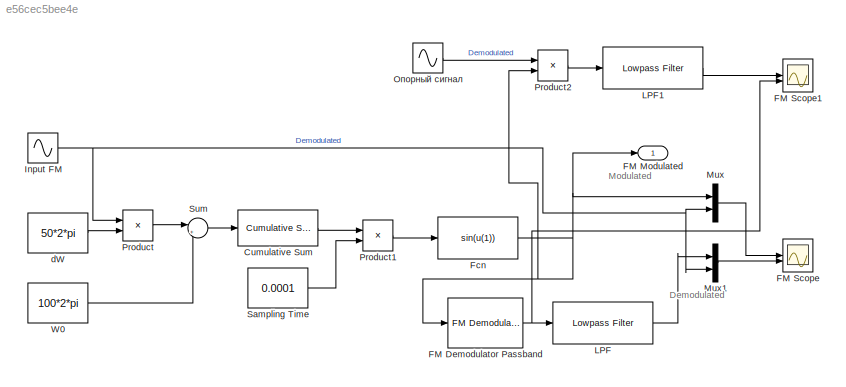
MODEL slx_e56cec5bee4e
KIND model
CONFIG AbsTol = auto
CONFIG EnableMultiTasking = off
CONFIG FixedStep = auto
CONFIG MaxStep = auto
CONFIG MinStep = auto
CONFIG RelTol = 1e-3
CONFIG SampleTimeConstraint = Unconstrained
CONFIG SolverName = VariableStepAuto
CONFIG StartTime = 0.0
CONFIG StopTime = 1
BLOCK [Reference] Cumulative Sum  REF=dspmathops/Cumulative
Sum
  SourceBlock = dspmathops/Cumulative\nSum
  SourceType = Cumulative Sum
  UserDataPersistent = on
BLOCK [Reference] FM Demodulator Passband  REF=commanapbnd3/FM
Demodulator
Passband
  SourceBlock = commanapbnd3/FM\nDemodulator\nPassband
  SourceType = FM Demodulator Passband
BLOCK [Outport] FM Modulated
  NameLocation = top
BLOCK [Scope] FM Scope
  ActiveDisplayString = 2
  ActiveDisplayYMaximum = 1.2499999999999212
  ActiveDisplayYMinimum = -1.2499999999998153
  Floating = off
  GraphicalSettings = {"Style":{"BackgroundColor":[1,1,1],"AxesColor":[1,1,1],"LabelsColor":[0.14901960784313725,0.14901960784313725,0.14901960784313725],"PreserveColors":false,"Visible":[true,true,true,true],"LineStyle":["-","-","-","-"],"LineWidth":[1.5,1.5,1.5,1.5],"BarWidth":[0.9,0.9,0.9,0.9],"LineColor":[[0.28627450980392155,0.8588235294117647,0.25098039215686274],[0.7529411764705882,0.3607843137254902,0.984313725...<+2512ch>
  LayoutDimensionsString = [2,1]
  MultipleDisplayCache = [{"MaxYLimMag":1.2499999999999212,"MaxYLimReal":1.2499999999999212,"MinYLimMag":0,"MinYLimReal":-1.2499999999998153,"PlotAsMagnitudePhase":false,"ShowGrid":true,"ShowLegend":true,"Title":"%<SignalLabel>","YLabel":""},{"MaxYLimMag":1.2499999999999212,"MaxYLimReal":1.2499999999999212,"MinYLimMag":0,"MinYLimReal":-1.2499999999998153,"PlotAsMagnitudePhase":false,"ShowGrid":true,"ShowLegend":true,"Titl...<+33ch>
  NumInputPorts = 2
  ScopeFrameLocation = window
  ShowLegend = on
  WasSavedAsWebScope = on
  WindowPosition = [0.000000,36.000000,1536.000000,793.000000,]
BLOCK [Scope] FM Scope1
  ActiveDisplayString = 2
  ActiveDisplayYMaximum = 3.1808721386889021
  ActiveDisplayYMinimum = -3.8397364152037881
  DataLoggingVariableName = ScopeData1
  Floating = off
  GraphicalSettings = {"Style":{"BackgroundColor":[1,1,1],"AxesColor":[1,1,1],"LabelsColor":[0.14901960784313725,0.14901960784313725,0.14901960784313725],"PreserveColors":false,"Visible":[true,true],"LineStyle":["-","-"],"LineWidth":[1.5,1.5],"BarWidth":[0.9,0.9],"LineColor":[[0.28627450980392155,0.8588235294117647,0.25098039215686274],[0.7529411764705882,0.3607843137254902,0.984313725490196]],"LineFaceAlpha":[1,1],"Li...<+2305ch>
  LayoutDimensionsString = [2,1]
  MultipleDisplayCache = [{"MaxYLimMag":0.38254824122969744,"MaxYLimReal":0.3574378038202875,"MinYLimMag":0,"MinYLimReal":-0.38254824122969744,"PlotAsMagnitudePhase":false,"ShowGrid":true,"ShowLegend":true,"Title":"%<SignalLabel>","YLabel":""},{"MaxYLimMag":3.8397364152037881,"MaxYLimReal":3.1808721386889021,"MinYLimMag":0,"MinYLimReal":-3.8397364152037881,"PlotAsMagnitudePhase":false,"ShowGrid":true,"ShowLegend":true,"Ti...<+35ch>
  NumInputPorts = 2
  ScopeFrameLocation = window
  ShowLegend = on
  Visible = on
  WasSavedAsWebScope = on
  WindowPosition = [0.000000,36.000000,1536.000000,793.000000,]
BLOCK [Fcn] Fcn
  Expr = sin(u(1))
BLOCK [Sin] Input FM
  Frequency = 2*2*pi
  SampleTime = 0.0001
BLOCK [Reference] LPF  REF=dspfdesign/Lowpass Filter
  SourceBlock = dspfdesign/Lowpass Filter
  SourceType = dsp.simulink.LowpassFilter
BLOCK [Reference] LPF1  REF=dspfdesign/Lowpass Filter
  SourceBlock = dspfdesign/Lowpass Filter
  SourceType = dsp.simulink.LowpassFilter
BLOCK [Mux] Mux
  DisplayOption = bar
  Inputs = 2
BLOCK [Mux] Mux1
  DisplayOption = bar
  Inputs = 2
BLOCK [Product] Product
BLOCK [Product] Product1
BLOCK [Product] Product2
BLOCK [Constant] Sampling Time
  Value = 0.0001
BLOCK [Sum] Sum
  Inputs = |++
BLOCK [Constant] W0
  Value = 100*2*pi
BLOCK [Constant] dW
  Value = 50*2*pi
BLOCK [Sin] Опорный сигнал
  Frequency = 95
  SampleTime = 0.0001
ANNOTATION (root): Demodulated
ANNOTATION (root): Modulated
LINE Cumulative Sum:1 -> Product1:1
NET FM Demodulator Passband:1 -> FM Scope1:2, LPF:1
NET Fcn:1 -> FM Demodulator Passband:1, FM Modulated:1, Mux:1, Product2:2
NET Input FM:1 -> Mux1:2, Mux:2, Product:1
LINE LPF1:1 -> FM Scope1:1
LINE LPF:1 -> Mux1:1
LINE Mux1:1 -> FM Scope:2
LINE Mux:1 -> FM Scope:1
LINE Product1:1 -> Fcn:1
LINE Product2:1 -> LPF1:1
LINE Product:1 -> Sum:1
LINE Sampling Time:1 -> Product1:2
LINE Sum:1 -> Cumulative Sum:1
LINE W0:1 -> Sum:2
LINE dW:1 -> Product:2
LINE Опорный сигнал:1 -> Product2:1
note: NET lines group one-source signal fan-out (src -> all destinations, sorted); 1:1 wires keep LINE
